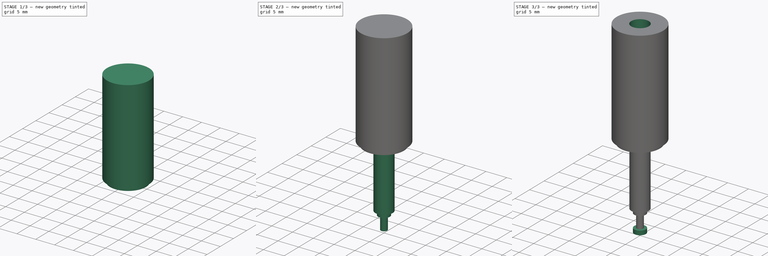
[diagram: build sequence overview — one tinted view per stage of 3, left to right]
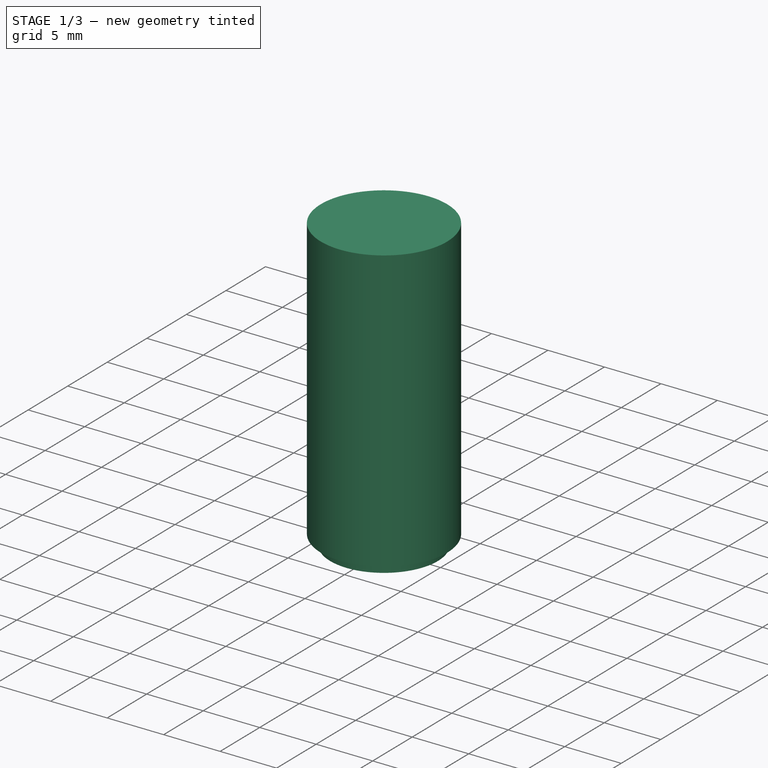
[diagram: stage 1 of 3 — iso view after this stage's code; geometry added in this stage tinted green]
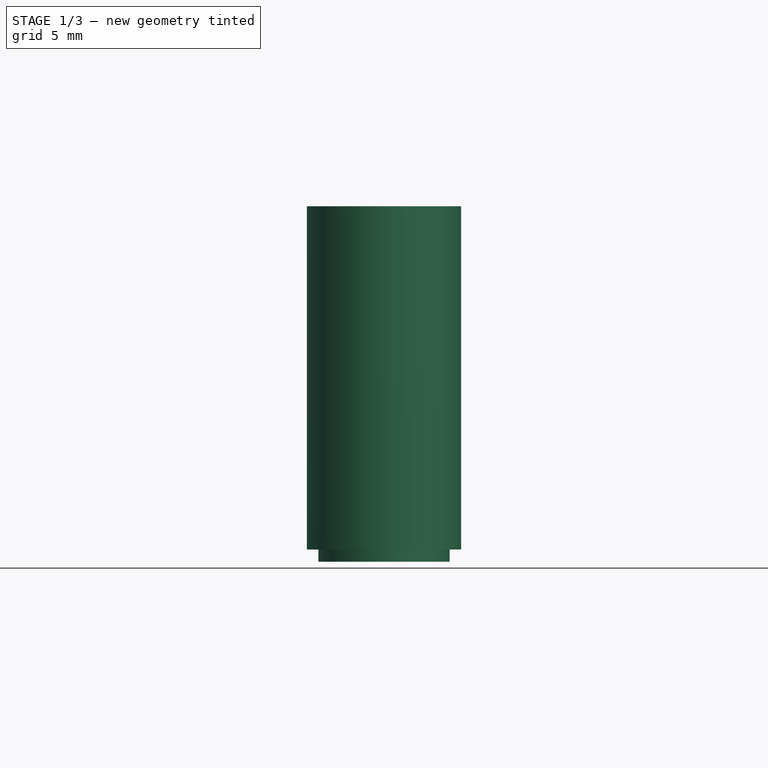
[diagram: stage 1 of 3 — front view after this stage's code; geometry added in this stage tinted green]
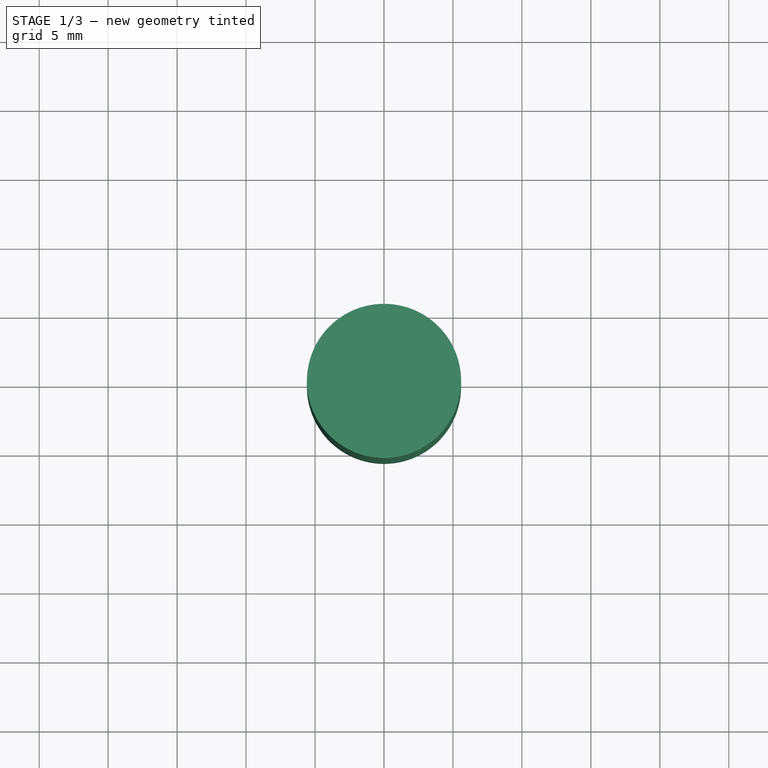
[diagram: stage 1 of 3 — top view after this stage's code; geometry added in this stage tinted green]
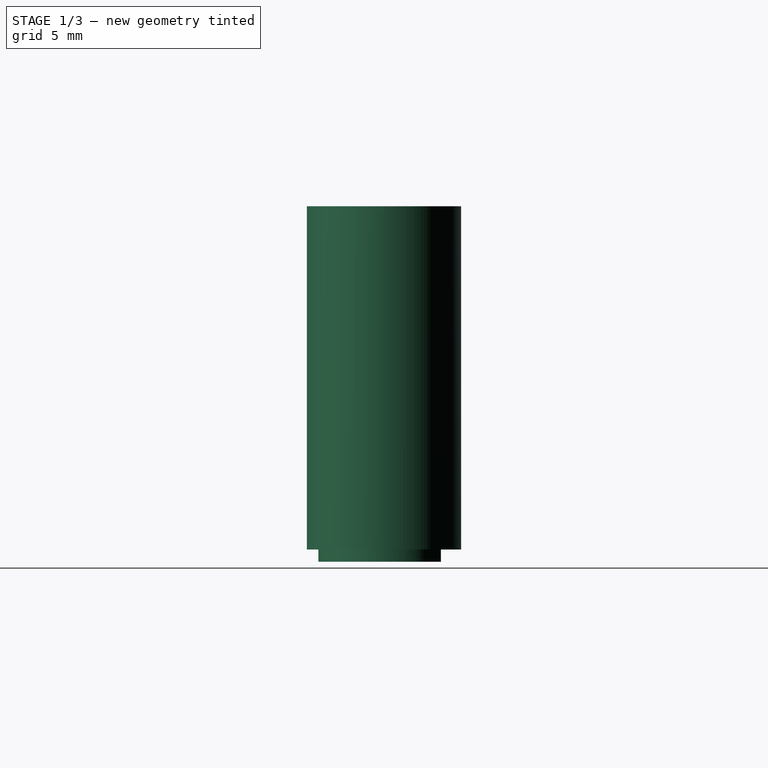
[diagram: stage 1 of 3 — right view after this stage's code; geometry added in this stage tinted green]
FCSTD DOCUMENT  (FreeCAD 0.18R16158 (Git))
Label: 3760-4
License: All rights reserved
LicenseURL: http://en.wikipedia.org/wiki/All_rights_reserved
objects: Sketcher::SketchObject×7, PartDesign::Pad×6, PartDesign::Pocket×1, PartDesign::Body×1
note: 22 computed .brp shape members not serialized (recipe doc carries the construction recipe); baked Part::Feature solids carry a one-line shape summary decoded from their .brp

FEATURE [Sketcher::SketchObject] Sketch
  MapMode = 5
  Support = -> [XY_Plane]
  sketch-geometry (3):
    g0: LineSegment StartX=-2.37595 StartY=4.1275 StartZ=0 EndX=2.37595 EndY=4.1275 EndZ=0
    g1: ArcOfCircle CenterX=0 CenterY=0 CenterZ=0 NormalX=0 NormalY=0 NormalZ=1 AngleXU=0 Radius=4.7625 StartAngle=2.09311 EndAngle=7.33167
    g2: GeomPoint X=0 Y=-4.7625 Z=0
  constraints (8):
    c: Symmetric(g0,g0,g-2)
    c: Coincident(g1,g-1)
    c: Coincident(g1,g0)
    c: Coincident(g1,g0)
    c: Diameter(g1) = 9.525
    c: PointOnObject(g2,g1)
    c: PointOnObject(g2,g-2)
    c: DistanceY(g2,g0) = 8.89
FEATURE [PartDesign::Pad] Pad
  Length = 0.89
  Length2 = 100
  Profile = -> Sketch
  Type = 0
FEATURE [Sketcher::SketchObject] Sketch001
  MapMode = 5
  Placement = pos=(0,0,0.89) rot=(0,0,1;0rad)
  Support = -> [Pad]
  sketch-geometry (1):
    g0: Circle CenterX=0 CenterY=0 CenterZ=0 NormalX=0 NormalY=0 NormalZ=1 AngleXU=0 Radius=5.59
  constraints (2):
    c: Coincident(g0,g-1)
    c: Diameter(g0) = 11.18
FEATURE [PartDesign::Pad] Pad001
  BaseFeature = -> Pad
  Length = 24.89
  Length2 = 100
  Profile = -> Sketch001
  Type = 0
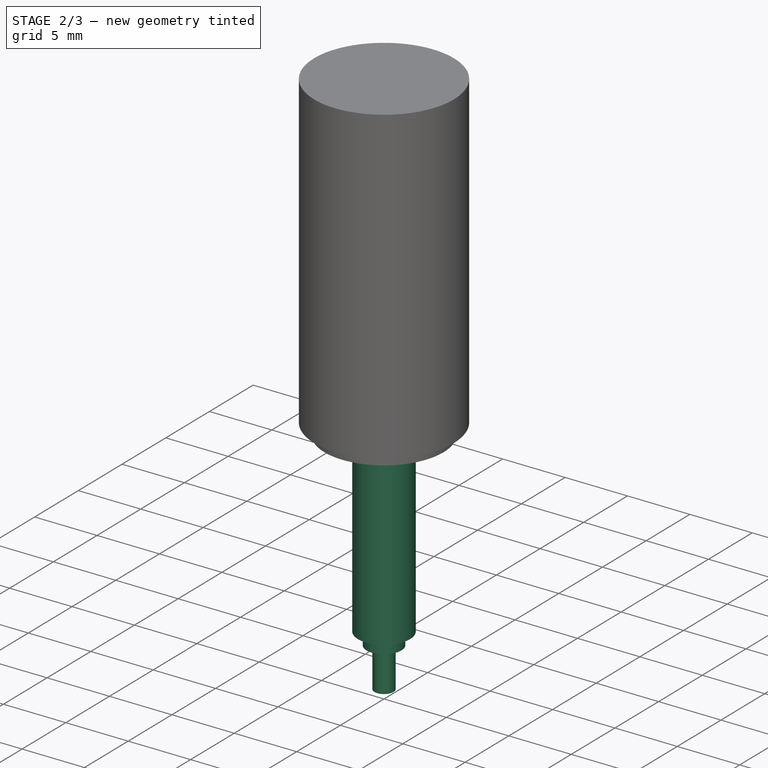
[diagram: stage 2 of 3 — iso view after this stage's code; geometry added in this stage tinted green]
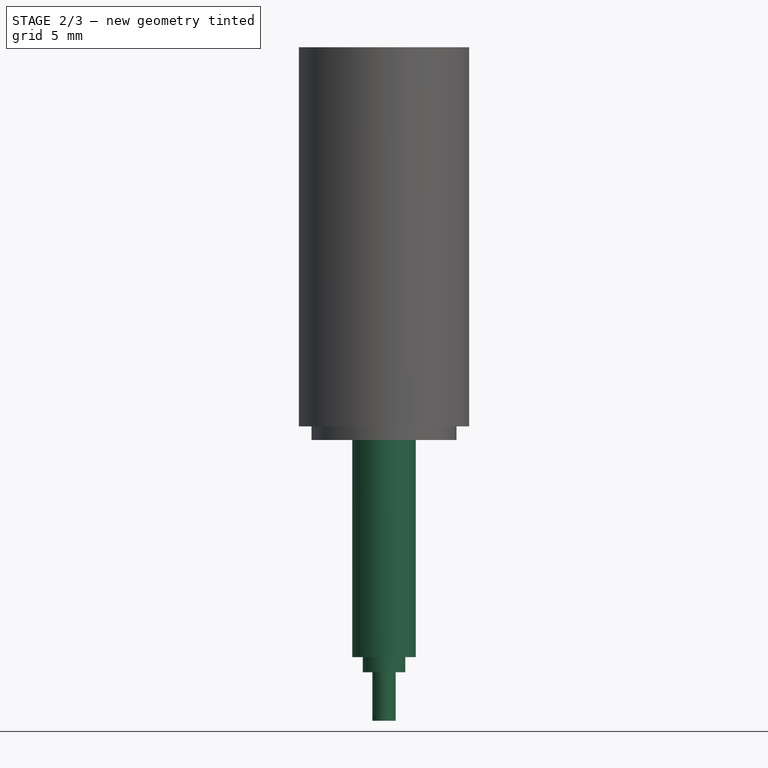
[diagram: stage 2 of 3 — front view after this stage's code; geometry added in this stage tinted green]
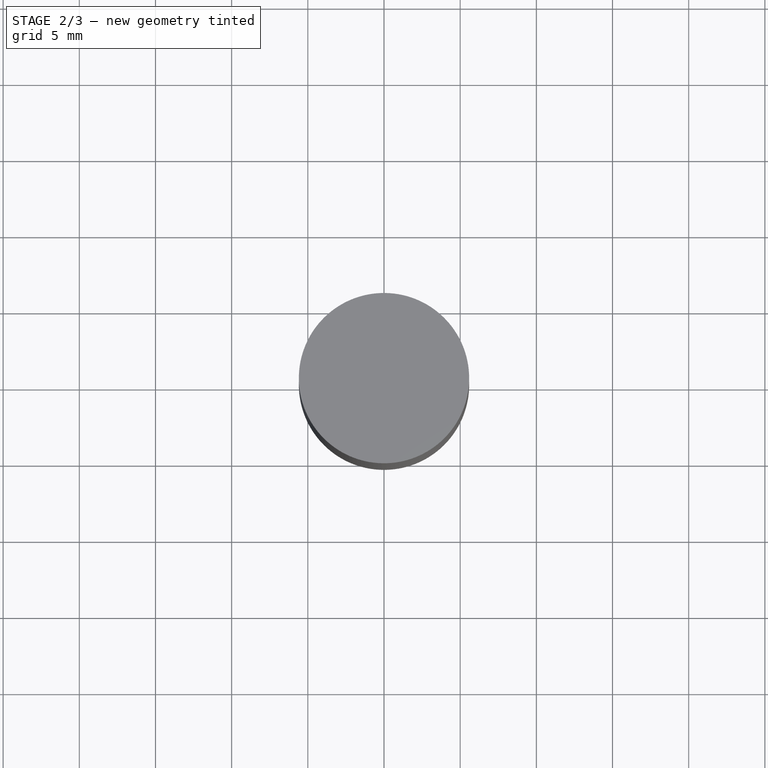
[diagram: stage 2 of 3 — top view after this stage's code; geometry added in this stage tinted green]
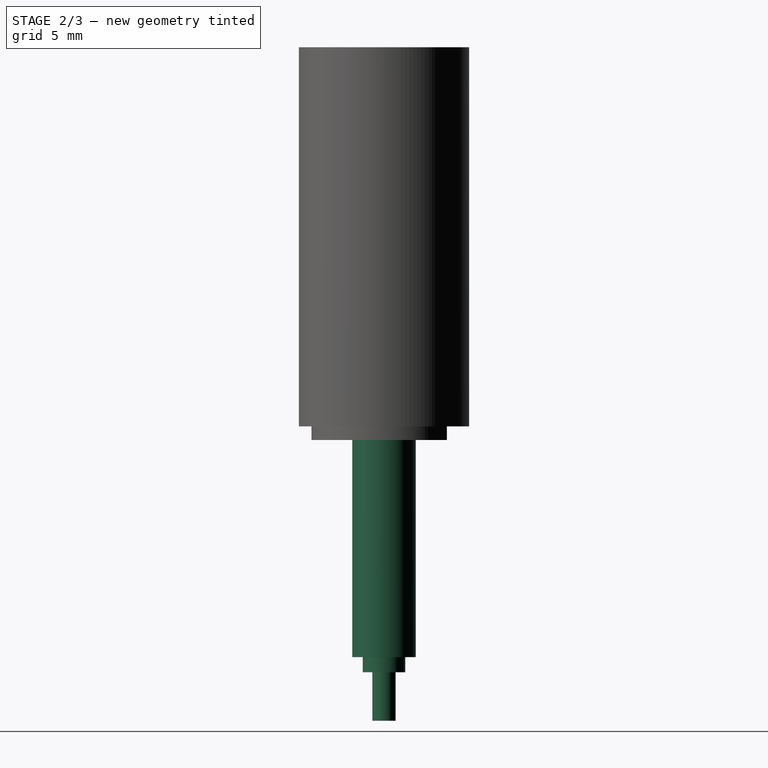
[diagram: stage 2 of 3 — right view after this stage's code; geometry added in this stage tinted green]
FEATURE [Sketcher::SketchObject] Sketch002
  MapMode = 5
  Placement = pos=(0,0,0) rot=(1,0,0;3.14159rad)
  Support = -> [Pad001]
  sketch-geometry (1):
    g0: Circle CenterX=0 CenterY=0 CenterZ=0 NormalX=0 NormalY=0 NormalZ=1 AngleXU=0 Radius=2.0828
  constraints (2):
    c: Coincident(g0,g-1)
    c: Diameter(g0) = 4.1656
FEATURE [PartDesign::Pad] Pad002
  BaseFeature = -> Pad001
  Length = 14.25
  Length2 = 100
  Profile = -> Sketch002
  Type = 0
FEATURE [Sketcher::SketchObject] Sketch003
  MapMode = 5
  Placement = pos=(0,0,-14.25) rot=(1,0,0;3.14159rad)
  Support = -> [Pad002]
  sketch-geometry (1):
    g0: Circle CenterX=0 CenterY=0 CenterZ=0 NormalX=0 NormalY=0 NormalZ=1 AngleXU=0 Radius=1.395
  constraints (2):
    c: Coincident(g0,g-1)
    c: Diameter(g0) = 2.79
FEATURE [PartDesign::Pad] Pad003
  BaseFeature = -> Pad002
  Length = 1
  Length2 = 100
  Profile = -> Sketch003
  Type = 0
FEATURE [Sketcher::SketchObject] Sketch004
  MapMode = 5
  Placement = pos=(0,0,-15.25) rot=(1,0,0;3.14159rad)
  Support = -> [Pad003]
  sketch-geometry (1):
    g0: Circle CenterX=0 CenterY=0 CenterZ=0 NormalX=0 NormalY=0 NormalZ=1 AngleXU=0 Radius=0.76
  constraints (2):
    c: Coincident(g0,g-1)
    c: Diameter(g0) = 1.52
FEATURE [PartDesign::Pad] Pad004
  BaseFeature = -> Pad003
  Length = 3.18
  Length2 = 100
  Profile = -> Sketch004
  Type = 0
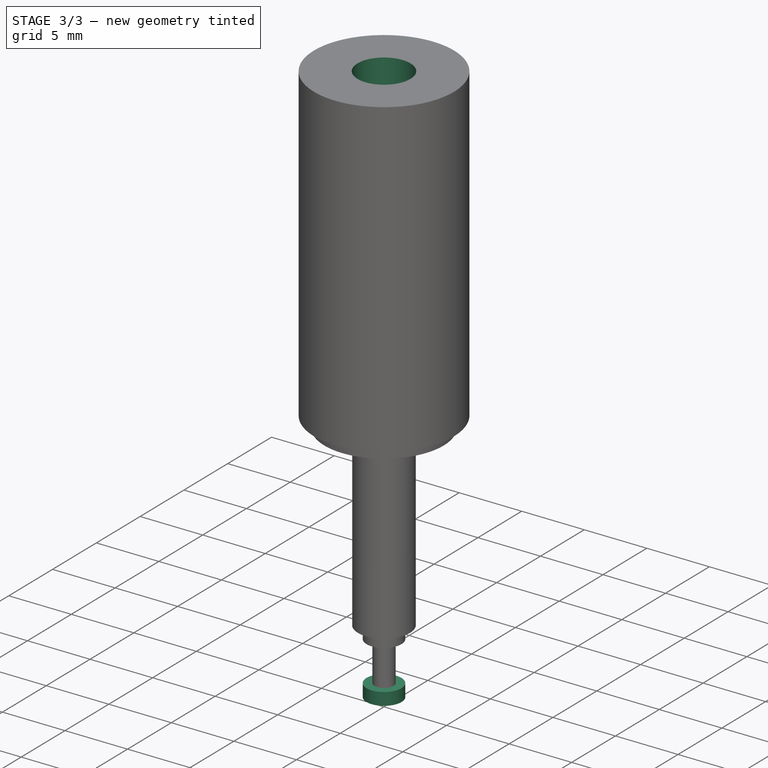
[diagram: stage 3 of 3 — iso view after this stage's code; geometry added in this stage tinted green]
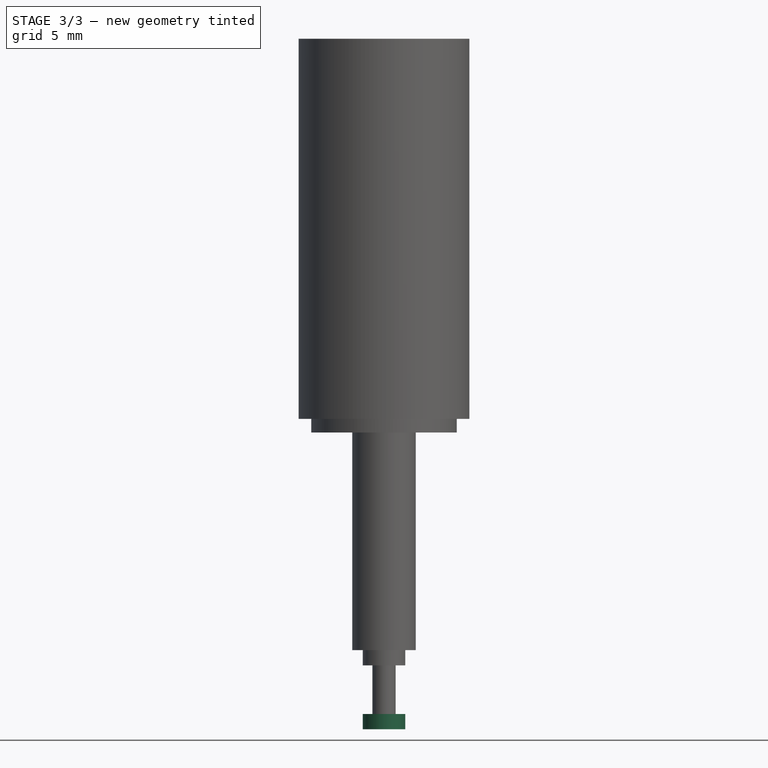
[diagram: stage 3 of 3 — front view after this stage's code; geometry added in this stage tinted green]
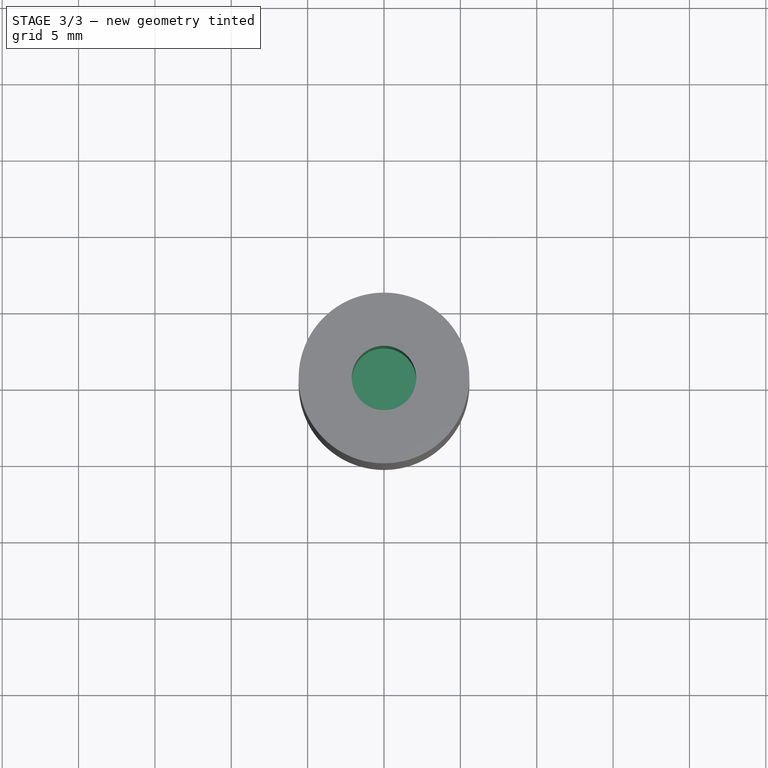
[diagram: stage 3 of 3 — top view after this stage's code; geometry added in this stage tinted green]
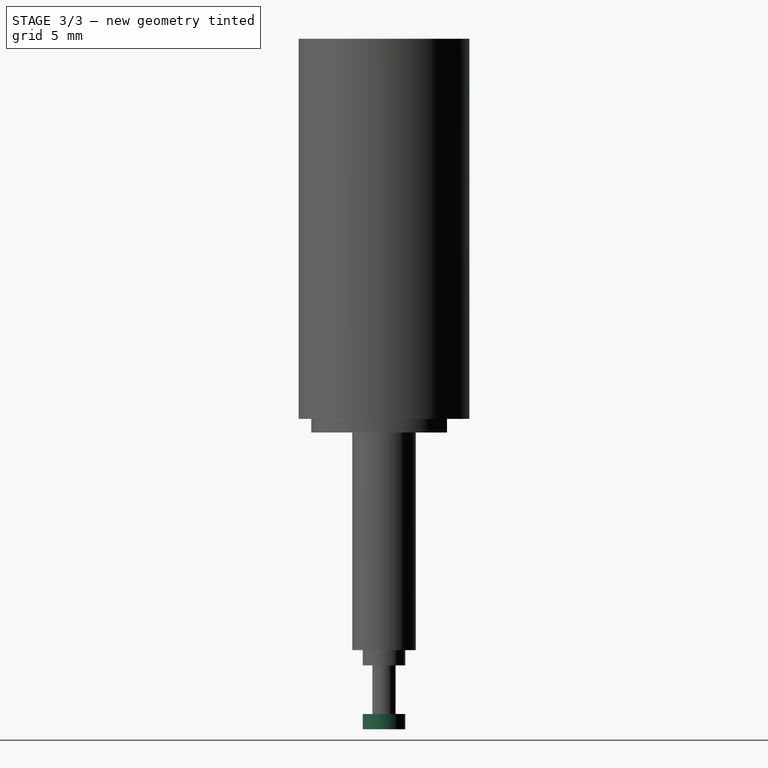
[diagram: stage 3 of 3 — right view after this stage's code; geometry added in this stage tinted green]
FEATURE [Sketcher::SketchObject] Sketch005
  MapMode = 5
  Placement = pos=(0,0,-18.43) rot=(1,0,0;3.14159rad)
  Support = -> [Pad004]
  sketch-geometry (1):
    g0: Circle CenterX=0 CenterY=0 CenterZ=0 NormalX=0 NormalY=0 NormalZ=1 AngleXU=0 Radius=1.395
  constraints (2):
    c: Coincident(g0,g-1)
    c: Diameter(g0) = 2.79
FEATURE [PartDesign::Pad] Pad005
  BaseFeature = -> Pad004
  Length = 1
  Length2 = 100
  Profile = -> Sketch005
  Type = 0
FEATURE [Sketcher::SketchObject] Sketch006
  MapMode = 5
  Placement = pos=(0,0,25.78) rot=(0,0,1;0rad)
  Support = -> [Pad005]
  sketch-geometry (1):
    g0: Circle CenterX=0 CenterY=0 CenterZ=0 NormalX=0 NormalY=0 NormalZ=1 AngleXU=0 Radius=2.11
  constraints (2):
    c: Coincident(g0,g-1)
    c: Diameter(g0) = 4.22
FEATURE [PartDesign::Pocket] Pocket  label="BindingPost_Pomona_3750_3760_3770"
  BaseFeature = -> Pad005
  Length = 10
  Length2 = 100
  Profile = -> Sketch006
  Type = 0
FEATURE [PartDesign::Body] Body
  Group = -> [Sketch,Pad,Sketch001,Pad001,Sketch002,Pad002,Sketch003,Pad003,Sketch004,Pad004,Sketch005,Pad005,Sketch006,Pocket]
  Origin = -> Origin
  Tip = -> Pocket
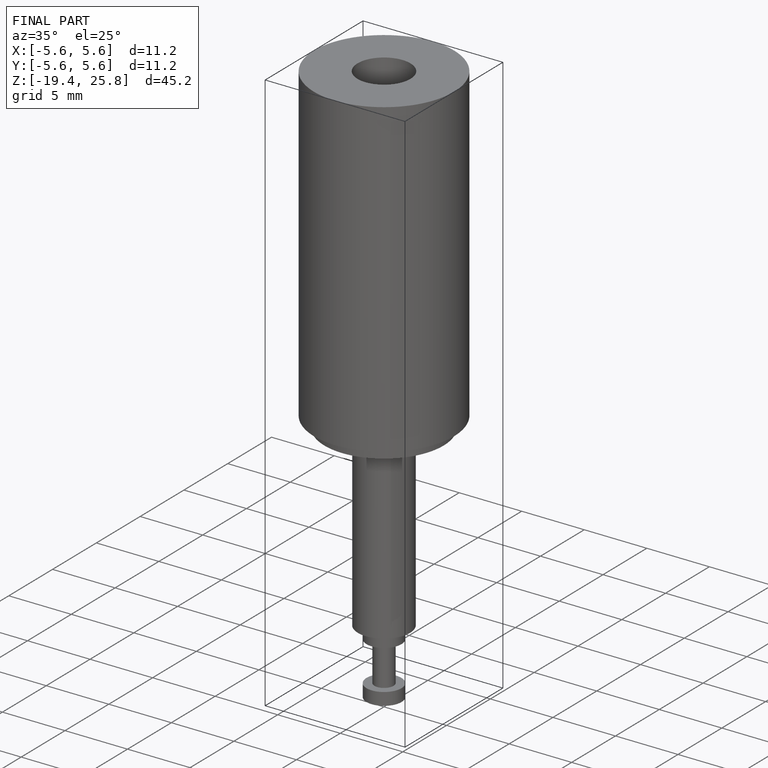
[diagram: finished part — iso view with bounding-box wireframe]
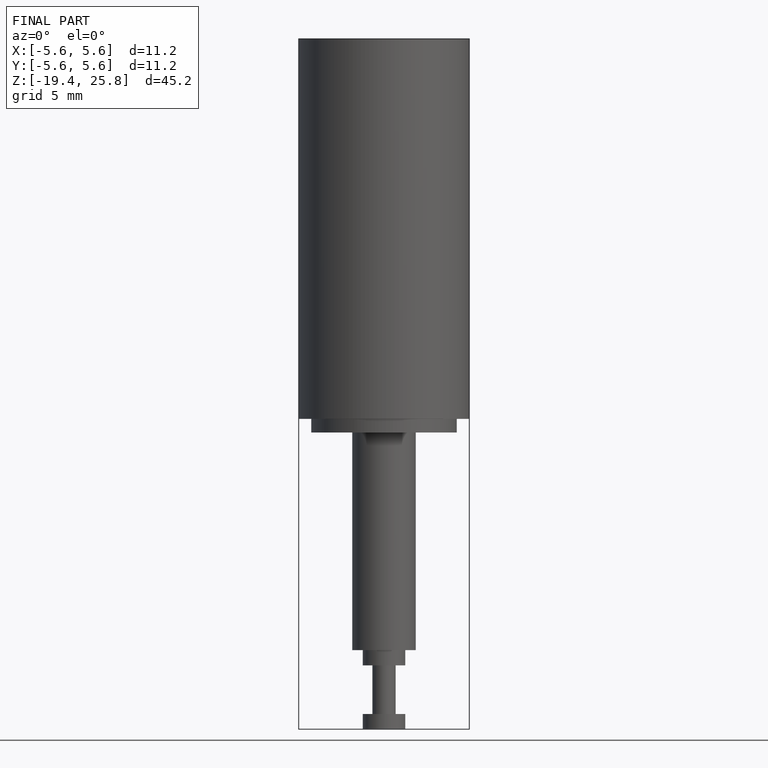
[diagram: finished part — front view with bounding-box wireframe]
